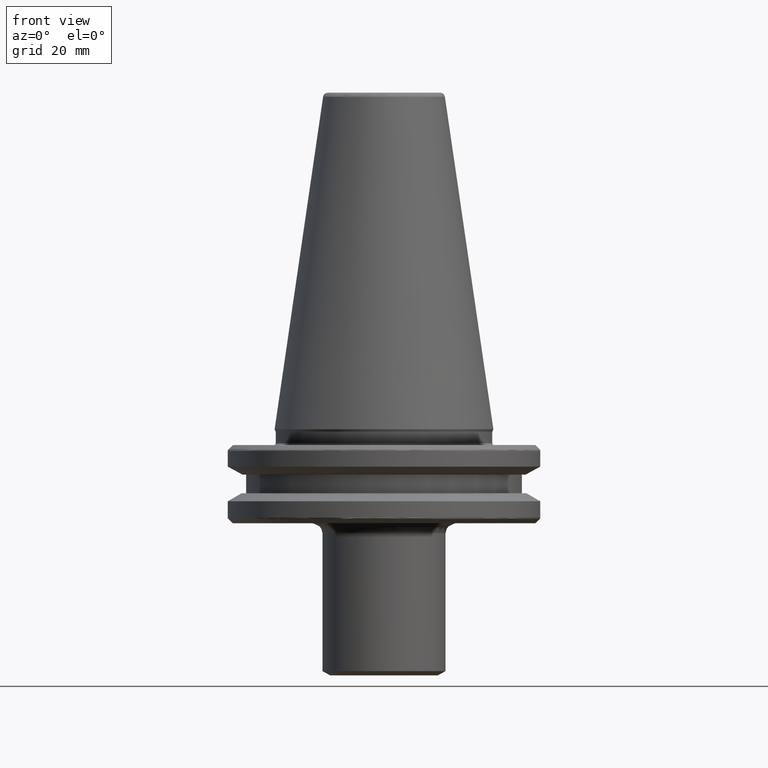
[diagram: clean part render]
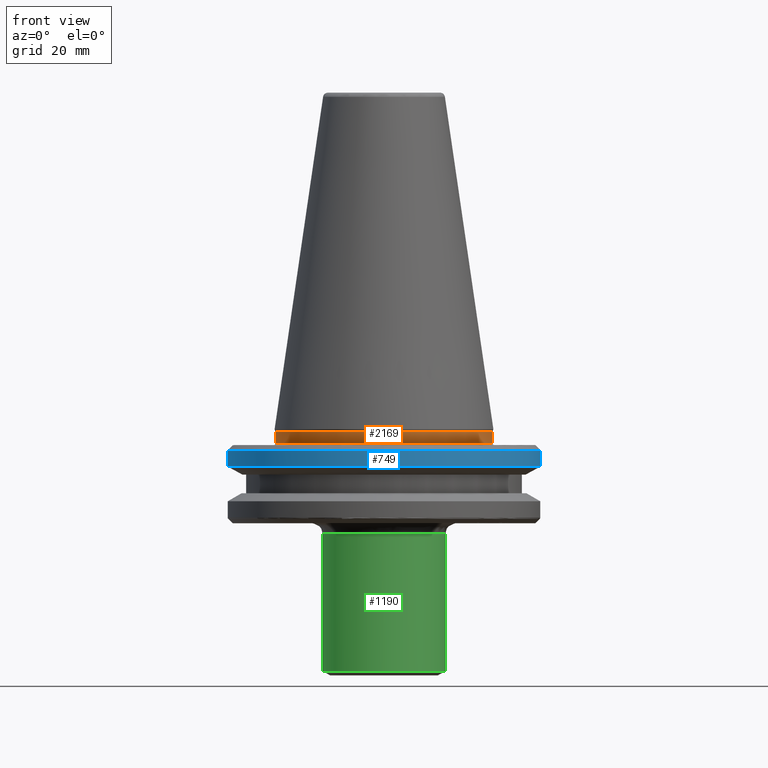
[diagram: same view with three faces highlighted in distinct colors, each labeled with its STEP entity id]
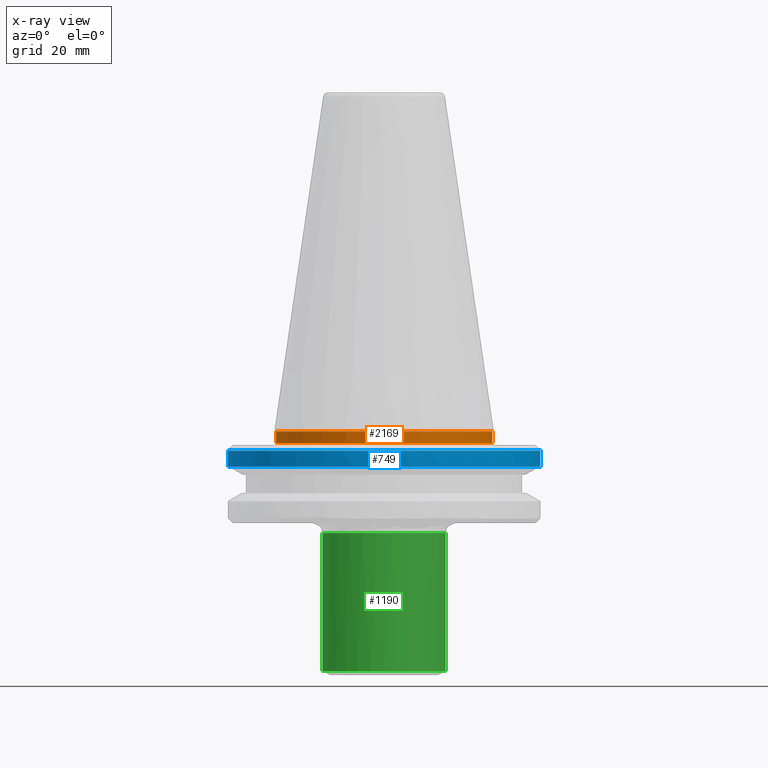
[diagram: x-ray of the same camera — body ghosted, the three highlighted faces saturated]
A machine part, front view with three faces highlighted in distinct colors.
The next image is the same camera in x-ray (body ghosted, the three faces saturated) — at least one of them is partly hidden behind the body in this view.
Their STEP definitions:

[orange] entity #2169 — the highlighted cylindrical surface (partial cylindrical patch) has radius 22 mm, axis along (0, 0, 1).
#122 = AXIS2_PLACEMENT_3D ( 'NONE', #990, #1699, #1922 ) ;
#144 = DIRECTION ( 'NONE',  ( 0.0000000000000000000, 0.0000000000000000000, 1.000000000000000000 ) ) ;
#145 = CYLINDRICAL_SURFACE ( 'NONE', #710, 22.00000000000000000 ) ;
#170 = CIRCLE ( 'NONE', #122, 22.00000000000000000 ) ;
#303 = VERTEX_POINT ( 'NONE', #2291 ) ;
#313 = FACE_OUTER_BOUND ( 'NONE', #519, .T. ) ;
#393 = CARTESIAN_POINT ( 'NONE',  ( 22.00000000000000000, 0.0000000000000000000, -2.799999999999997200 ) ) ;
#402 = CARTESIAN_POINT ( 'NONE',  ( 22.00000000000000000, 0.0000000000000000000, -0.4825140571146652700 ) ) ;
#519 = EDGE_LOOP ( 'NONE', ( #755, #2767, #1564, #1320 ) ) ;
#546 = DIRECTION ( 'NONE',  ( 0.0000000000000000000, 0.0000000000000000000, 1.000000000000000000 ) ) ;
#710 = AXIS2_PLACEMENT_3D ( 'NONE', #997, #546, #1680 ) ;
#755 = ORIENTED_EDGE ( 'NONE', *, *, #2810, .F. ) ;
#762 = VECTOR ( 'NONE', #144, 1000.000000000000000 ) ;
#881 = CARTESIAN_POINT ( 'NONE',  ( -22.00000000000000000, 2.694222958124176800E-015, -0.4825140571146635500 ) ) ;
#990 = CARTESIAN_POINT ( 'NONE',  ( 0.0000000000000000000, 0.0000000000000000000, -0.4825140571146635500 ) ) ;
#997 = CARTESIAN_POINT ( 'NONE',  ( 0.0000000000000000000, 0.0000000000000000000, 69.75694866325665100 ) ) ;
#1031 = EDGE_CURVE ( 'NONE', #303, #2957, #1046, .T. ) ;
#1046 = CIRCLE ( 'NONE', #2555, 22.00000000000000000 ) ;
#1320 = ORIENTED_EDGE ( 'NONE', *, *, #2307, .F. ) ;
#1387 = CARTESIAN_POINT ( 'NONE',  ( -22.00000000000000000, 2.694222958124176800E-015, 69.75694866325665100 ) ) ;
#1439 = DIRECTION ( 'NONE',  ( 0.0000000000000000000, 0.0000000000000000000, 1.000000000000000000 ) ) ;
#1483 = LINE ( 'NONE', #1387, #762 ) ;
#1564 = ORIENTED_EDGE ( 'NONE', *, *, #1858, .T. ) ;
#1680 = DIRECTION ( 'NONE',  ( 1.000000000000000000, 0.0000000000000000000, 0.0000000000000000000 ) ) ;
#1699 = DIRECTION ( 'NONE',  ( 0.0000000000000000000, 0.0000000000000000000, 1.000000000000000000 ) ) ;
#1858 = EDGE_CURVE ( 'NONE', #2957, #2774, #2299, .T. ) ;
#1872 = CARTESIAN_POINT ( 'NONE',  ( 22.00000000000000000, 0.0000000000000000000, 69.75694866325665100 ) ) ;
#1922 = DIRECTION ( 'NONE',  ( 1.000000000000000000, 0.0000000000000000000, -7.885106708985486600E-017 ) ) ;
#1925 = VECTOR ( 'NONE', #2056, 1000.000000000000000 ) ;
#2056 = DIRECTION ( 'NONE',  ( 0.0000000000000000000, 0.0000000000000000000, 1.000000000000000000 ) ) ;
#2169 = ADVANCED_FACE ( 'NONE', ( #313 ), #145, .T. ) ;
#2291 = CARTESIAN_POINT ( 'NONE',  ( -22.00000000000000000, 2.694222958124176800E-015, -2.799999999999997200 ) ) ;
#2299 = LINE ( 'NONE', #1872, #1925 ) ;
#2307 = EDGE_CURVE ( 'NONE', #2691, #2774, #170, .T. ) ;
#2555 = AXIS2_PLACEMENT_3D ( 'NONE', #3036, #1439, #2798 ) ;
#2691 = VERTEX_POINT ( 'NONE', #881 ) ;
#2767 = ORIENTED_EDGE ( 'NONE', *, *, #1031, .T. ) ;
#2774 = VERTEX_POINT ( 'NONE', #402 ) ;
#2798 = DIRECTION ( 'NONE',  ( 1.000000000000000000, 0.0000000000000000000, 0.0000000000000000000 ) ) ;
#2810 = EDGE_CURVE ( 'NONE', #303, #2691, #1483, .T. ) ;
#2957 = VERTEX_POINT ( 'NONE', #393 ) ;
#3036 = CARTESIAN_POINT ( 'NONE',  ( 0.0000000000000000000, 0.0000000000000000000, -2.799999999999997200 ) ) ;

[blue] entity #749 — the highlighted cylindrical surface (partial cylindrical patch) has radius 31.75 mm, axis along (0, 0, 1).
#66 = EDGE_CURVE ( 'NONE', #675, #2083, #1270, .T. ) ;
#93 = DIRECTION ( 'NONE',  ( 0.0000000000000000000, 0.0000000000000000000, 1.000000000000000000 ) ) ;
#251 = DIRECTION ( 'NONE',  ( 1.000000000000000000, 0.0000000000000000000, 0.0000000000000000000 ) ) ;
#265 = EDGE_CURVE ( 'NONE', #2451, #2663, #1367, .T. ) ;
#297 = AXIS2_PLACEMENT_3D ( 'NONE', #622, #93, #1058 ) ;
#308 = DIRECTION ( 'NONE',  ( 0.0000000000000000000, 0.0000000000000000000, 1.000000000000000000 ) ) ;
#345 = VECTOR ( 'NONE', #1783, 1000.000000000000000 ) ;
#395 = CARTESIAN_POINT ( 'NONE',  ( -31.75000000000000000, 3.888253587292846500E-015, -4.365685424949236700 ) ) ;
#405 = AXIS2_PLACEMENT_3D ( 'NONE', #1550, #1652, #2922 ) ;
#407 = CARTESIAN_POINT ( 'NONE',  ( 31.75000000000000000, 0.0000000000000000000, -4.365685424949244700 ) ) ;
#456 = EDGE_CURVE ( 'NONE', #2663, #2561, #2580, .T. ) ;
#501 = ORIENTED_EDGE ( 'NONE', *, *, #636, .T. ) ;
#515 = DIRECTION ( 'NONE',  ( -0.0000000000000000000, -0.0000000000000000000, -1.000000000000000000 ) ) ;
#520 = AXIS2_PLACEMENT_3D ( 'NONE', #1475, #2143, #251 ) ;
#535 = DIRECTION ( 'NONE',  ( 1.000000000000000000, 1.776356839400250500E-015, 0.0000000000000000000 ) ) ;
#538 = CARTESIAN_POINT ( 'NONE',  ( 8.717907037342282500, -30.52966748735167700, -4.365685424949240300 ) ) ;
#622 = CARTESIAN_POINT ( 'NONE',  ( 0.0000000000000000000, 0.0000000000000000000, -7.578163357943284800 ) ) ;
#636 = EDGE_CURVE ( 'NONE', #1025, #2451, #2076, .T. ) ;
#651 = ORIENTED_EDGE ( 'NONE', *, *, #2486, .T. ) ;
#675 = VERTEX_POINT ( 'NONE', #1045 ) ;
#697 = EDGE_CURVE ( 'NONE', #675, #834, #937, .T. ) ;
#727 = EDGE_CURVE ( 'NONE', #1025, #1100, #1622, .T. ) ;
#742 = DIRECTION ( 'NONE',  ( 1.000000000000000000, 0.0000000000000000000, 0.0000000000000000000 ) ) ;
#749 = ADVANCED_FACE ( 'NONE', ( #2322 ), #1692, .T. ) ;
#763 = VERTEX_POINT ( 'NONE', #1978 ) ;
#777 = DIRECTION ( 'NONE',  ( 1.000000000000000000, 0.0000000000000000000, 0.0000000000000000000 ) ) ;
#791 = CARTESIAN_POINT ( 'NONE',  ( 0.0000000000000000000, 0.0000000000000000000, -4.365685424949236700 ) ) ;
#797 = ORIENTED_EDGE ( 'NONE', *, *, #66, .F. ) ;
#834 = VERTEX_POINT ( 'NONE', #2267 ) ;
#861 = AXIS2_PLACEMENT_3D ( 'NONE', #2342, #2116, #3034 ) ;
#937 = CIRCLE ( 'NONE', #2314, 31.75000000000000000 ) ;
#1019 = ORIENTED_EDGE ( 'NONE', *, *, #727, .F. ) ;
#1025 = VERTEX_POINT ( 'NONE', #2144 ) ;
#1045 = CARTESIAN_POINT ( 'NONE',  ( -8.600431037885643400, -30.56296919415018800, -4.365685424949241200 ) ) ;
#1058 = DIRECTION ( 'NONE',  ( 1.000000000000000000, 0.0000000000000000000, 0.0000000000000000000 ) ) ;
#1100 = VERTEX_POINT ( 'NONE', #395 ) ;
#1121 = AXIS2_PLACEMENT_3D ( 'NONE', #1501, #1938, #777 ) ;
#1171 = ORIENTED_EDGE ( 'NONE', *, *, #265, .T. ) ;
#1246 = AXIS2_PLACEMENT_3D ( 'NONE', #2524, #2339, #2051 ) ;
#1270 = CIRCLE ( 'NONE', #1121, 31.75000000000000000 ) ;
#1282 = ORIENTED_EDGE ( 'NONE', *, *, #1344, .F. ) ;
#1344 = EDGE_CURVE ( 'NONE', #2083, #2561, #3022, .T. ) ;
#1367 = CIRCLE ( 'NONE', #297, 31.75000000000000000 ) ;
#1475 = CARTESIAN_POINT ( 'NONE',  ( 0.0000000000000000000, 0.0000000000000000000, -4.365685424949250000 ) ) ;
#1501 = CARTESIAN_POINT ( 'NONE',  ( 0.0000000000000000000, 0.0000000000000000000, -4.365685424949250000 ) ) ;
#1550 = CARTESIAN_POINT ( 'NONE',  ( 0.0000000000000000000, 0.0000000000000000000, 69.75694866325665100 ) ) ;
#1573 = EDGE_LOOP ( 'NONE', ( #1019, #501, #1171, #2961, #1282, #797, #2088, #1786, #651 ) ) ;
#1622 = LINE ( 'NONE', #1980, #2257 ) ;
#1652 = DIRECTION ( 'NONE',  ( 0.0000000000000000000, 0.0000000000000000000, 1.000000000000000000 ) ) ;
#1692 = CYLINDRICAL_SURFACE ( 'NONE', #405, 31.75000000000000000 ) ;
#1714 = CARTESIAN_POINT ( 'NONE',  ( 0.0000000000000000000, 0.0000000000000000000, -4.365685424949236700 ) ) ;
#1783 = DIRECTION ( 'NONE',  ( 0.0000000000000000000, 0.0000000000000000000, 1.000000000000000000 ) ) ;
#1786 = ORIENTED_EDGE ( 'NONE', *, *, #2281, .F. ) ;
#1938 = DIRECTION ( 'NONE',  ( -0.0000000000000000000, -0.0000000000000000000, 1.000000000000000000 ) ) ;
#1978 = CARTESIAN_POINT ( 'NONE',  ( -25.80334280669852000, -18.50000000000000400, -4.365685424949237600 ) ) ;
#1980 = CARTESIAN_POINT ( 'NONE',  ( -31.75000000000000000, 3.888253587292846500E-015, 69.75694866325665100 ) ) ;
#2051 = DIRECTION ( 'NONE',  ( 1.000000000000000000, 0.0000000000000000000, 0.0000000000000000000 ) ) ;
#2076 = CIRCLE ( 'NONE', #861, 31.75000000000000000 ) ;
#2083 = VERTEX_POINT ( 'NONE', #538 ) ;
#2088 = ORIENTED_EDGE ( 'NONE', *, *, #697, .T. ) ;
#2116 = DIRECTION ( 'NONE',  ( 0.0000000000000000000, 0.0000000000000000000, 1.000000000000000000 ) ) ;
#2143 = DIRECTION ( 'NONE',  ( -0.0000000000000000000, -0.0000000000000000000, 1.000000000000000000 ) ) ;
#2144 = CARTESIAN_POINT ( 'NONE',  ( -31.75000000000000000, 3.888253587292846500E-015, -7.578163357943284800 ) ) ;
#2182 = DIRECTION ( 'NONE',  ( -0.0000000000000000000, -0.0000000000000000000, -1.000000000000000000 ) ) ;
#2257 = VECTOR ( 'NONE', #308, 1000.000000000000000 ) ;
#2267 = CARTESIAN_POINT ( 'NONE',  ( -18.50000000000001100, -25.80334280669851300, -4.365685424949262500 ) ) ;
#2281 = EDGE_CURVE ( 'NONE', #763, #834, #2645, .T. ) ;
#2286 = CARTESIAN_POINT ( 'NONE',  ( 31.75000000000000000, 0.0000000000000000000, -7.578163357943284800 ) ) ;
#2314 = AXIS2_PLACEMENT_3D ( 'NONE', #791, #2182, #535 ) ;
#2322 = FACE_OUTER_BOUND ( 'NONE', #1573, .T. ) ;
#2339 = DIRECTION ( 'NONE',  ( 0.0000000000000000000, 0.0000000000000000000, 1.000000000000000000 ) ) ;
#2342 = CARTESIAN_POINT ( 'NONE',  ( 0.0000000000000000000, 0.0000000000000000000, -7.578163357943284800 ) ) ;
#2451 = VERTEX_POINT ( 'NONE', #2855 ) ;
#2486 = EDGE_CURVE ( 'NONE', #763, #1100, #2546, .T. ) ;
#2524 = CARTESIAN_POINT ( 'NONE',  ( 0.0000000000000000000, 0.0000000000000000000, -4.365685424949244700 ) ) ;
#2546 = CIRCLE ( 'NONE', #2882, 31.75000000000000000 ) ;
#2561 = VERTEX_POINT ( 'NONE', #407 ) ;
#2580 = LINE ( 'NONE', #2907, #345 ) ;
#2645 = CIRCLE ( 'NONE', #520, 31.75000000000000000 ) ;
#2663 = VERTEX_POINT ( 'NONE', #2286 ) ;
#2855 = CARTESIAN_POINT ( 'NONE',  ( 0.0000000000000000000, -31.75000000000000000, -7.578163357943284800 ) ) ;
#2882 = AXIS2_PLACEMENT_3D ( 'NONE', #1714, #515, #742 ) ;
#2907 = CARTESIAN_POINT ( 'NONE',  ( 31.75000000000000000, 0.0000000000000000000, 69.75694866325665100 ) ) ;
#2922 = DIRECTION ( 'NONE',  ( 1.000000000000000000, 0.0000000000000000000, 0.0000000000000000000 ) ) ;
#2961 = ORIENTED_EDGE ( 'NONE', *, *, #456, .T. ) ;
#3022 = CIRCLE ( 'NONE', #1246, 31.75000000000000000 ) ;
#3034 = DIRECTION ( 'NONE',  ( 1.000000000000000000, 0.0000000000000000000, 0.0000000000000000000 ) ) ;

[green] entity #1190 — the highlighted cylindrical surface (partial cylindrical patch) has radius 12.5 mm, axis along (0, 0, 1).
#56 = ORIENTED_EDGE ( 'NONE', *, *, #369, .F. ) ;
#188 = CYLINDRICAL_SURFACE ( 'NONE', #657, 12.50000000000000000 ) ;
#263 = VERTEX_POINT ( 'NONE', #909 ) ;
#325 = FACE_OUTER_BOUND ( 'NONE', #2387, .T. ) ;
#361 = EDGE_CURVE ( 'NONE', #945, #1133, #1947, .T. ) ;
#369 = EDGE_CURVE ( 'NONE', #2317, #1133, #1248, .T. ) ;
#386 = CARTESIAN_POINT ( 'NONE',  ( 12.50000000000000000, 0.0000000000000000000, -21.10000000000000900 ) ) ;
#510 = CARTESIAN_POINT ( 'NONE',  ( 12.50000000000000000, 0.0000000000000000000, -49.13397459621556600 ) ) ;
#516 = ORIENTED_EDGE ( 'NONE', *, *, #719, .T. ) ;
#569 = DIRECTION ( 'NONE',  ( 0.0000000000000000000, 0.0000000000000000000, 1.000000000000000000 ) ) ;
#644 = ORIENTED_EDGE ( 'NONE', *, *, #2480, .T. ) ;
#657 = AXIS2_PLACEMENT_3D ( 'NONE', #2962, #2706, #1597 ) ;
#678 = CARTESIAN_POINT ( 'NONE',  ( -12.50000000000000000, 1.530808498934191500E-015, 0.0000000000000000000 ) ) ;
#719 = EDGE_CURVE ( 'NONE', #2317, #263, #2558, .T. ) ;
#909 = CARTESIAN_POINT ( 'NONE',  ( 0.0000000000000000000, -12.50000000000001400, -49.13397459621556600 ) ) ;
#945 = VERTEX_POINT ( 'NONE', #386 ) ;
#1133 = VERTEX_POINT ( 'NONE', #2477 ) ;
#1190 = ADVANCED_FACE ( 'NONE', ( #325 ), #188, .T. ) ;
#1248 = LINE ( 'NONE', #678, #2071 ) ;
#1334 = CARTESIAN_POINT ( 'NONE',  ( 0.0000000000000000000, 0.0000000000000000000, -21.10000000000000900 ) ) ;
#1472 = DIRECTION ( 'NONE',  ( 0.0000000000000000000, 0.0000000000000000000, 1.000000000000000000 ) ) ;
#1504 = CIRCLE ( 'NONE', #2758, 12.50000000000000000 ) ;
#1597 = DIRECTION ( 'NONE',  ( 1.000000000000000000, 0.0000000000000000000, 0.0000000000000000000 ) ) ;
#1620 = DIRECTION ( 'NONE',  ( 1.000000000000000000, 0.0000000000000000000, 0.0000000000000000000 ) ) ;
#1803 = DIRECTION ( 'NONE',  ( 0.0000000000000000000, 0.0000000000000000000, 1.000000000000000000 ) ) ;
#1823 = EDGE_CURVE ( 'NONE', #263, #3027, #1504, .T. ) ;
#1947 = CIRCLE ( 'NONE', #2060, 12.50000000000000000 ) ;
#2060 = AXIS2_PLACEMENT_3D ( 'NONE', #1334, #2535, #2474 ) ;
#2071 = VECTOR ( 'NONE', #1803, 1000.000000000000000 ) ;
#2131 = DIRECTION ( 'NONE',  ( 1.000000000000000000, 0.0000000000000000000, 0.0000000000000000000 ) ) ;
#2317 = VERTEX_POINT ( 'NONE', #2833 ) ;
#2368 = VECTOR ( 'NONE', #1472, 1000.000000000000000 ) ;
#2387 = EDGE_LOOP ( 'NONE', ( #56, #516, #2811, #644, #2700 ) ) ;
#2462 = AXIS2_PLACEMENT_3D ( 'NONE', #2912, #569, #1620 ) ;
#2474 = DIRECTION ( 'NONE',  ( -1.000000000000000000, 0.0000000000000000000, 0.0000000000000000000 ) ) ;
#2477 = CARTESIAN_POINT ( 'NONE',  ( -12.50000000000000000, 1.530808498934191500E-015, -21.10000000000000900 ) ) ;
#2480 = EDGE_CURVE ( 'NONE', #3027, #945, #2481, .T. ) ;
#2481 = LINE ( 'NONE', #2802, #2368 ) ;
#2535 = DIRECTION ( 'NONE',  ( 0.0000000000000000000, 0.0000000000000000000, -1.000000000000000000 ) ) ;
#2558 = CIRCLE ( 'NONE', #2462, 12.50000000000000000 ) ;
#2581 = CARTESIAN_POINT ( 'NONE',  ( 0.0000000000000000000, 0.0000000000000000000, -49.13397459621556600 ) ) ;
#2700 = ORIENTED_EDGE ( 'NONE', *, *, #361, .T. ) ;
#2706 = DIRECTION ( 'NONE',  ( 0.0000000000000000000, 0.0000000000000000000, 1.000000000000000000 ) ) ;
#2758 = AXIS2_PLACEMENT_3D ( 'NONE', #2581, #3050, #2131 ) ;
#2802 = CARTESIAN_POINT ( 'NONE',  ( 12.50000000000000000, 0.0000000000000000000, 0.0000000000000000000 ) ) ;
#2811 = ORIENTED_EDGE ( 'NONE', *, *, #1823, .T. ) ;
#2833 = CARTESIAN_POINT ( 'NONE',  ( -12.50000000000000000, 1.530808498934191500E-015, -49.13397459621556600 ) ) ;
#2912 = CARTESIAN_POINT ( 'NONE',  ( 0.0000000000000000000, 0.0000000000000000000, -49.13397459621556600 ) ) ;
#2962 = CARTESIAN_POINT ( 'NONE',  ( 0.0000000000000000000, 0.0000000000000000000, 0.0000000000000000000 ) ) ;
#3027 = VERTEX_POINT ( 'NONE', #510 ) ;
#3050 = DIRECTION ( 'NONE',  ( 0.0000000000000000000, 0.0000000000000000000, 1.000000000000000000 ) ) ;